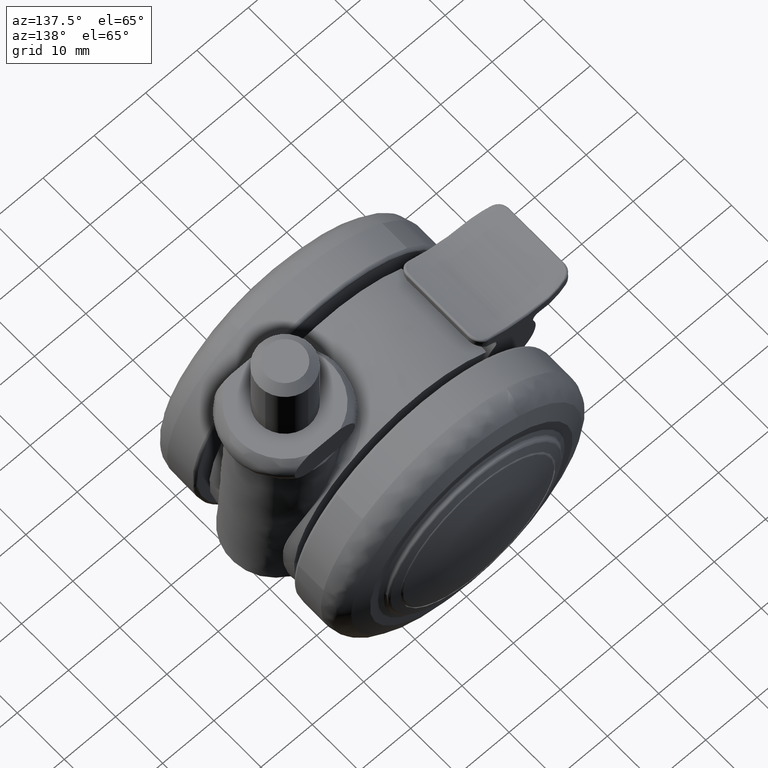
[diagram: clean part render]
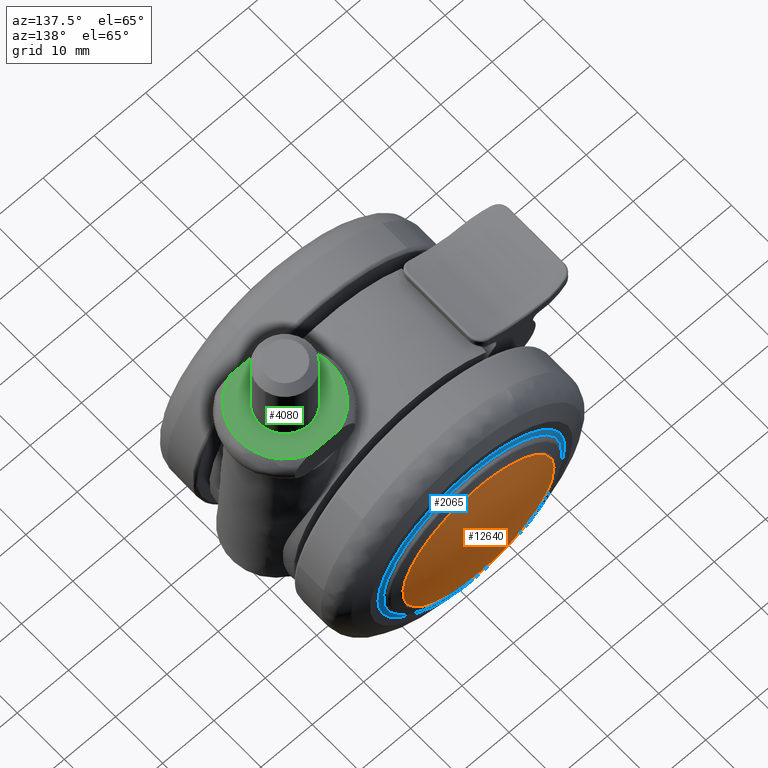
[diagram: same view with three faces highlighted in distinct colors, each labeled with its STEP entity id]
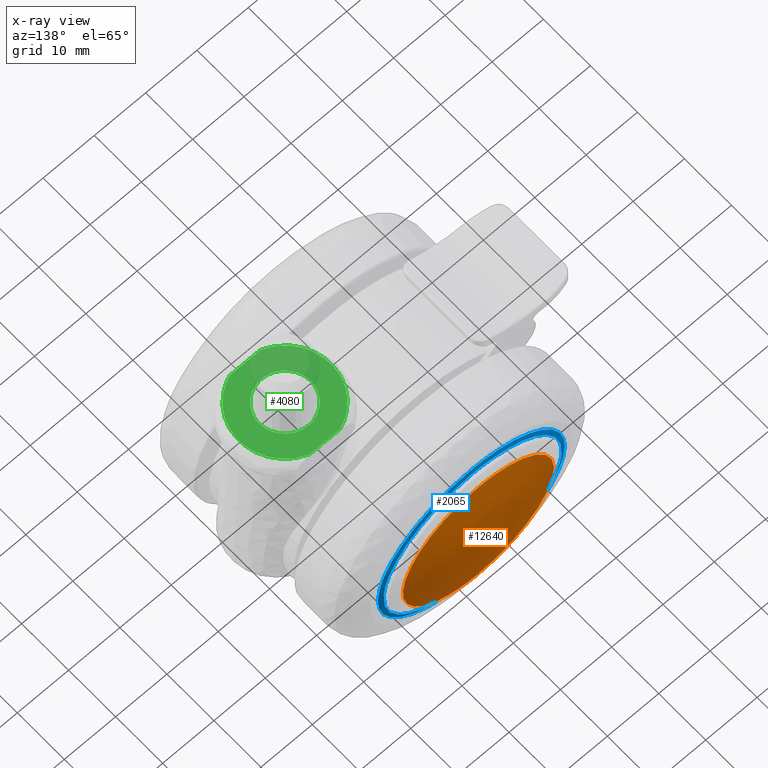
[diagram: x-ray of the same camera — body ghosted, the three highlighted faces saturated]
A machine part, auxiliary view with three faces highlighted in distinct colors.
The next image is the same camera in x-ray (body ghosted, the three faces saturated) — at least one of them is partly hidden behind the body in this view.
Their STEP definitions:

[orange] entity #12640 — the highlighted face is a freeform B-spline surface patch.
#9549=CARTESIAN_POINT('',(5.926938161823641,22.599255053341800,-13.481635294383331));
#9550=VERTEX_POINT('',#9549);
#9564=CARTESIAN_POINT('',(0.0,22.599255056600999,14.726951002130320));
#9565=VERTEX_POINT('',#9564);
#9566=CARTESIAN_POINT('',(0.0,22.599255056600999,14.726951002130320));
#9567=CARTESIAN_POINT('',(14.726951002130319,22.599255056600999,14.726951002130319));
#9568=CARTESIAN_POINT('',(14.726951002130320,22.599255056600999,-2.621149E-016));
#9569=CARTESIAN_POINT('',(14.726951002130319,22.599255056600992,-9.612881172707668));
#9570=CARTESIAN_POINT('',(5.926938161823641,22.599255053341789,-13.481635294383334));
#9578=(BOUNDED_CURVE()B_SPLINE_CURVE(2,(#9566,#9567,#9568,#9569,#9570),.UNSPECIFIED.,.F.,.U.)B_SPLINE_CURVE_WITH_KNOTS((3,2,3),(0.500000000000000,0.750000000000000,0.931662010431912),.UNSPECIFIED.)CURVE()GEOMETRIC_REPRESENTATION_ITEM()RATIONAL_B_SPLINE_CURVE((1.0,0.707106781186548,1.0,0.787169716113897,0.883644850240147))REPRESENTATION_ITEM(''));
#9579=EDGE_CURVE('',#9565,#9550,#9578,.T.);
#9581=CARTESIAN_POINT('',(-14.309172923474369,22.599255056404619,-3.482909141406380));
#9582=VERTEX_POINT('',#9581);
#9583=CARTESIAN_POINT('',(-14.309172923474376,22.599255056404626,-3.482909141406380));
#9584=CARTESIAN_POINT('',(-14.726951002130326,22.599255056601002,-1.766510998526684));
#9585=CARTESIAN_POINT('',(-14.726951002130320,22.599255056600999,-2.621149E-016));
#9586=CARTESIAN_POINT('',(-14.726951002130319,22.599255056600999,14.726951002130319));
#9587=CARTESIAN_POINT('',(0.0,22.599255056600999,14.726951002130320));
#9595=(BOUNDED_CURVE()B_SPLINE_CURVE(2,(#9583,#9584,#9585,#9586,#9587),.UNSPECIFIED.,.F.,.U.)B_SPLINE_CURVE_WITH_KNOTS((3,2,3),(0.209598322307066,0.250000000000000,0.500000000000000),.UNSPECIFIED.)CURVE()GEOMETRIC_REPRESENTATION_ITEM()RATIONAL_B_SPLINE_CURVE((0.920631806224154,0.952666490300212,1.0,0.707106781186548,1.0))REPRESENTATION_ITEM(''));
#9596=EDGE_CURVE('',#9582,#9565,#9595,.T.);
#9641=CARTESIAN_POINT('',(0.0,22.599255056600999,-14.726951002130320));
#9642=VERTEX_POINT('',#9641);
#9643=CARTESIAN_POINT('',(0.0,22.599255056600999,-14.726951002130320));
#9644=CARTESIAN_POINT('',(-11.572328774366317,22.599255056600992,-14.726951002130322));
#9645=CARTESIAN_POINT('',(-14.309172923474378,22.599255056404619,-3.482909141406380));
#9653=(BOUNDED_CURVE()B_SPLINE_CURVE(2,(#9643,#9644,#9645),.UNSPECIFIED.,.F.,.U.)B_SPLINE_CURVE_WITH_KNOTS((3,3),(0.0,0.209598322307066),.UNSPECIFIED.)CURVE()GEOMETRIC_REPRESENTATION_ITEM()RATIONAL_B_SPLINE_CURVE((1.0,0.754440290886335,0.920631806224154))REPRESENTATION_ITEM(''));
#9654=EDGE_CURVE('',#9642,#9582,#9653,.T.);
#9656=CARTESIAN_POINT('',(5.926938161823641,22.599255053341793,-13.481635294383336));
#9657=CARTESIAN_POINT('',(3.094296429752681,22.599255056600999,-14.726951002130324));
#9658=CARTESIAN_POINT('',(0.0,22.599255056600999,-14.726951002130320));
#9666=(BOUNDED_CURVE()B_SPLINE_CURVE(2,(#9656,#9657,#9658),.UNSPECIFIED.,.F.,.U.)B_SPLINE_CURVE_WITH_KNOTS((3,3),(0.931662010431912,1.0),.UNSPECIFIED.)CURVE()GEOMETRIC_REPRESENTATION_ITEM()RATIONAL_B_SPLINE_CURVE((0.883644850240147,0.919937065072651,1.0))REPRESENTATION_ITEM(''));
#9667=EDGE_CURVE('',#9550,#9642,#9666,.T.);
#12610=CARTESIAN_POINT('',(-15.829709842010661,20.005647351095902,15.829986090365244));
#12611=CARTESIAN_POINT('',(-8.071202480209092,22.208393669579195,16.142686665696019));
#12612=CARTESIAN_POINT('',(8.068882567178905,22.208393669579195,16.142686665696019));
#12613=CARTESIAN_POINT('',(15.825336094572215,20.006888932141290,15.830162344482185));
#12614=CARTESIAN_POINT('',(-16.142416089958182,22.208472070397931,8.071348897715129));
#12615=CARTESIAN_POINT('',(-8.233857186931674,24.499999999999989,8.234000878099884));
#12616=CARTESIAN_POINT('',(8.231490521911994,24.499999999999989,8.234000878099884));
#12617=CARTESIAN_POINT('',(16.137959491341814,22.209763189586987,8.071440540976507));
#12618=CARTESIAN_POINT('',(-16.142416089958182,22.208472070397931,-8.071348783451848));
#12619=CARTESIAN_POINT('',(-8.233857186931674,24.499999999999989,-8.234000761533995));
#12620=CARTESIAN_POINT('',(8.231490521911994,24.499999999999989,-8.234000761533995));
#12621=CARTESIAN_POINT('',(16.137959491341814,22.209763189586987,-8.071440426711929));
#12622=CARTESIAN_POINT('',(-15.829709850692895,20.005647412256948,-15.829985874948019));
#12623=CARTESIAN_POINT('',(-8.071202484723408,22.208393733180419,-16.142686446198404));
#12624=CARTESIAN_POINT('',(8.068882571691924,22.208393733180419,-16.142686446198404));
#12625=CARTESIAN_POINT('',(15.825336103252146,20.006888993303701,-15.830162129062655));
#12633=(BOUNDED_SURFACE()B_SPLINE_SURFACE(2,2,((#12610,#12614,#12618,#12622),(#12611,#12615,#12619,#12623),(#12612,#12616,#12620,#12624),(#12613,#12617,#12621,#12625)),.UNSPECIFIED.,.F.,.F.,.U.)B_SPLINE_SURFACE_WITH_KNOTS((3,1,3),(3,1,3),(13.223013078975679,29.153157823789790,45.078723752689363),(13.222735077905661,29.153157823789780,45.083580344152452),.UNSPECIFIED.)GEOMETRIC_REPRESENTATION_ITEM()RATIONAL_B_SPLINE_SURFACE(((1.040304246775229,1.020151771710773,1.020151771710773,1.040304246204646),(1.020152475064455,1.0,1.0,1.020152474493872),(1.020152475064455,1.0,1.0,1.020152474493872),(1.040292663956154,1.020140188891698,1.020140188891698,1.040292663385571)))REPRESENTATION_ITEM('')SURFACE());
#12634=ORIENTED_EDGE('',*,*,#9654,.T.);
#12635=ORIENTED_EDGE('',*,*,#9596,.T.);
#12636=ORIENTED_EDGE('',*,*,#9579,.T.);
#12637=ORIENTED_EDGE('',*,*,#9667,.T.);
#12638=EDGE_LOOP('',(#12634,#12635,#12636,#12637));
#12639=FACE_OUTER_BOUND('',#12638,.T.);
#12640=ADVANCED_FACE('',(#12639),#12633,.T.);

[blue] entity #2065 — the highlighted face is a freeform B-spline surface patch.
#1334=CARTESIAN_POINT('',(-17.304861389110140,-21.344103306145790,1.307233910658407));
#1335=VERTEX_POINT('',#1334);
#1349=CARTESIAN_POINT('',(0.0,-21.344103495310350,-17.354166368667300));
#1350=VERTEX_POINT('',#1349);
#1351=CARTESIAN_POINT('',(-17.304861389110133,-21.344103306145797,1.307233910658407));
#1352=CARTESIAN_POINT('',(-17.354166368667297,-21.344103495310353,0.654546774100839));
#1353=CARTESIAN_POINT('',(-17.354166368667300,-21.344103495310350,1.789254E-015));
#1354=CARTESIAN_POINT('',(-17.354166368667297,-21.344103495310346,-17.354166368667297));
#1355=CARTESIAN_POINT('',(0.0,-21.344103495310350,-17.354166368667300));
#1363=(BOUNDED_CURVE()B_SPLINE_CURVE(2,(#1351,#1352,#1353,#1354,#1355),.UNSPECIFIED.,.F.,.U.)B_SPLINE_CURVE_WITH_KNOTS((3,2,3),(0.736870159258585,0.750000000000000,1.0),.UNSPECIFIED.)CURVE()GEOMETRIC_REPRESENTATION_ITEM()RATIONAL_B_SPLINE_CURVE((0.970850634519328,0.984617434730956,1.0,0.707106781186548,1.0))REPRESENTATION_ITEM(''));
#1364=EDGE_CURVE('',#1335,#1350,#1363,.T.);
#1366=CARTESIAN_POINT('',(17.304861389110140,-21.344103306145790,-1.307233910658398));
#1367=VERTEX_POINT('',#1366);
#1368=CARTESIAN_POINT('',(0.0,-21.344103495310350,-17.354166368667300));
#1369=CARTESIAN_POINT('',(16.092653286220099,-21.344103495310357,-17.354166368667300));
#1370=CARTESIAN_POINT('',(17.304861389110133,-21.344103306145787,-1.307233910658397));
#1378=(BOUNDED_CURVE()B_SPLINE_CURVE(2,(#1368,#1369,#1370),.UNSPECIFIED.,.F.,.U.)B_SPLINE_CURVE_WITH_KNOTS((3,3),(0.0,0.236870159258586),.UNSPECIFIED.)CURVE()GEOMETRIC_REPRESENTATION_ITEM()RATIONAL_B_SPLINE_CURVE((1.0,0.722489346455591,0.970850634519328))REPRESENTATION_ITEM(''));
#1379=EDGE_CURVE('',#1350,#1367,#1378,.T.);
#1426=CARTESIAN_POINT('',(0.0,-21.344103495310350,17.354166368667300));
#1427=VERTEX_POINT('',#1426);
#1428=CARTESIAN_POINT('',(17.304861389110133,-21.344103306145794,-1.307233910658397));
#1429=CARTESIAN_POINT('',(17.354166368667304,-21.344103495310353,-0.654546774100833));
#1430=CARTESIAN_POINT('',(17.354166368667300,-21.344103495310350,1.789254E-015));
#1431=CARTESIAN_POINT('',(17.354166368667297,-21.344103495310346,17.354166368667297));
#1432=CARTESIAN_POINT('',(0.0,-21.344103495310350,17.354166368667300));
#1440=(BOUNDED_CURVE()B_SPLINE_CURVE(2,(#1428,#1429,#1430,#1431,#1432),.UNSPECIFIED.,.F.,.U.)B_SPLINE_CURVE_WITH_KNOTS((3,2,3),(0.236870159258586,0.250000000000000,0.500000000000000),.UNSPECIFIED.)CURVE()GEOMETRIC_REPRESENTATION_ITEM()RATIONAL_B_SPLINE_CURVE((0.970850634519328,0.984617434730956,1.0,0.707106781186548,1.0))REPRESENTATION_ITEM(''));
#1441=EDGE_CURVE('',#1367,#1427,#1440,.T.);
#1443=CARTESIAN_POINT('',(0.0,-21.344103495310350,17.354166368667300));
#1444=CARTESIAN_POINT('',(-16.092653286220195,-21.344103495310350,17.354166368667304));
#1445=CARTESIAN_POINT('',(-17.304861389110140,-21.344103306145790,1.307233910658407));
#1453=(BOUNDED_CURVE()B_SPLINE_CURVE(2,(#1443,#1444,#1445),.UNSPECIFIED.,.F.,.U.)B_SPLINE_CURVE_WITH_KNOTS((3,3),(0.500000000000000,0.736870159258586),.UNSPECIFIED.)CURVE()GEOMETRIC_REPRESENTATION_ITEM()RATIONAL_B_SPLINE_CURVE((1.0,0.722489346455590,0.970850634519330))REPRESENTATION_ITEM(''));
#1454=EDGE_CURVE('',#1427,#1335,#1453,.T.);
#1999=CARTESIAN_POINT('',(-19.351392213445248,-17.263890860080874,-19.351392213445248));
#2000=CARTESIAN_POINT('',(-9.954560622473874,-20.501447278870966,-19.909121244947748));
#2001=CARTESIAN_POINT('',(9.954559836009322,-20.501447278870966,-19.909121244947748));
#2002=CARTESIAN_POINT('',(19.351390770238254,-17.263891357319100,-19.351392299103740));
#2003=CARTESIAN_POINT('',(-19.909121244947748,-20.501447278870966,-9.954560622473874));
#2004=CARTESIAN_POINT('',(-10.249976550771420,-23.931162000000029,-10.249976550771420));
#2005=CARTESIAN_POINT('',(10.249975740967400,-23.931162000000029,-10.249976550771420));
#2006=CARTESIAN_POINT('',(19.909119762685819,-20.501447805184160,-9.954560667807471));
#2007=CARTESIAN_POINT('',(-19.909121244947748,-20.501447278870966,9.954559836009322));
#2008=CARTESIAN_POINT('',(-10.249976550771420,-23.931162000000029,10.249975740967400));
#2009=CARTESIAN_POINT('',(10.249975740967400,-23.931162000000029,10.249975740967400));
#2010=CARTESIAN_POINT('',(19.909119762685819,-20.501447805184160,9.954559881342915));
#2011=CARTESIAN_POINT('',(-19.351392299103740,-17.263891357319100,19.351390770238265));
#2012=CARTESIAN_POINT('',(-9.954560667807471,-20.501447805184160,19.909119762685830));
#2013=CARTESIAN_POINT('',(9.954559881342915,-20.501447805184160,19.909119762685830));
#2014=CARTESIAN_POINT('',(19.351390855896760,-17.263891854557347,19.351390855896771));
#2022=(BOUNDED_SURFACE()B_SPLINE_SURFACE(2,2,((#1999,#2003,#2007,#2011),(#2000,#2004,#2008,#2012),(#2001,#2005,#2009,#2013),(#2002,#2006,#2010,#2014)),.UNSPECIFIED.,.F.,.F.,.U.)B_SPLINE_SURFACE_WITH_KNOTS((3,1,3),(3,1,3),(11.806379472589491,31.558164899969832,51.309948766851427),(11.806379472589491,31.558164899969821,51.309948766851427),.UNSPECIFIED.)GEOMETRIC_REPRESENTATION_ITEM()RATIONAL_B_SPLINE_SURFACE(((1.059352881458295,1.029676440729147,1.029676440729147,1.059352876769094),(1.029676440729147,1.0,1.0,1.029676436039946),(1.029676440729147,1.0,1.0,1.029676436039946),(1.059352876769094,1.029676436039946,1.029676436039946,1.059352872079892)))REPRESENTATION_ITEM('')SURFACE());
#2023=CARTESIAN_POINT('',(0.0,-21.081931999999899,-18.191763477110101));
#2024=VERTEX_POINT('',#2023);
#2025=CARTESIAN_POINT('',(0.0,-21.081931999999899,18.191763477110101));
#2026=VERTEX_POINT('',#2025);
#2027=CARTESIAN_POINT('',(0.0,-21.081931999999899,-18.191763477110101));
#2028=CARTESIAN_POINT('',(18.191763477110104,-21.081931999999895,-18.191763477110104));
#2029=CARTESIAN_POINT('',(18.191763477110101,-21.081931999999899,1.789254E-015));
#2030=CARTESIAN_POINT('',(18.191763477110104,-21.081931999999895,18.191763477110104));
#2031=CARTESIAN_POINT('',(0.0,-21.081931999999899,18.191763477110101));
#2039=(BOUNDED_CURVE()B_SPLINE_CURVE(2,(#2027,#2028,#2029,#2030,#2031),.UNSPECIFIED.,.F.,.U.)B_SPLINE_CURVE_WITH_KNOTS((3,2,3),(0.0,0.250000000000000,0.500000000000000),.UNSPECIFIED.)CURVE()GEOMETRIC_REPRESENTATION_ITEM()RATIONAL_B_SPLINE_CURVE((1.0,0.707106781186547,1.0,0.707106781186547,1.0))REPRESENTATION_ITEM(''));
#2040=EDGE_CURVE('',#2024,#2026,#2039,.T.);
#2041=ORIENTED_EDGE('',*,*,#2040,.T.);
#2042=CARTESIAN_POINT('',(0.0,-21.081931999999899,18.191763477110101));
#2043=CARTESIAN_POINT('',(-18.191763477110104,-21.081931999999895,18.191763477110104));
#2044=CARTESIAN_POINT('',(-18.191763477110101,-21.081931999999899,1.789254E-015));
#2045=CARTESIAN_POINT('',(-18.191763477110104,-21.081931999999895,-18.191763477110104));
#2046=CARTESIAN_POINT('',(0.0,-21.081931999999899,-18.191763477110101));
#2054=(BOUNDED_CURVE()B_SPLINE_CURVE(2,(#2042,#2043,#2044,#2045,#2046),.UNSPECIFIED.,.F.,.U.)B_SPLINE_CURVE_WITH_KNOTS((3,2,3),(0.500000000000000,0.750000000000000,1.0),.UNSPECIFIED.)CURVE()GEOMETRIC_REPRESENTATION_ITEM()RATIONAL_B_SPLINE_CURVE((1.0,0.707106781186547,1.0,0.707106781186547,1.0))REPRESENTATION_ITEM(''));
#2055=EDGE_CURVE('',#2026,#2024,#2054,.T.);
#2056=ORIENTED_EDGE('',*,*,#2055,.T.);
#2057=EDGE_LOOP('',(#2041,#2056));
#2058=FACE_OUTER_BOUND('',#2057,.T.);
#2059=ORIENTED_EDGE('',*,*,#1379,.F.);
#2060=ORIENTED_EDGE('',*,*,#1364,.F.);
#2061=ORIENTED_EDGE('',*,*,#1454,.F.);
#2062=ORIENTED_EDGE('',*,*,#1441,.F.);
#2063=EDGE_LOOP('',(#2059,#2060,#2061,#2062));
#2064=FACE_BOUND('',#2063,.T.);
#2065=ADVANCED_FACE('',(#2058,#2064),#2022,.T.);

[green] entity #4080 — the highlighted face is a freeform B-spline surface patch.
#2331=CARTESIAN_POINT('',(17.043632677626320,4.999809615319569,32.500000002522903));
#2332=VERTEX_POINT('',#2331);
#2338=CARTESIAN_POINT('',(12.000000000000110,-3.459513E-015,32.500000002522903));
#2339=VERTEX_POINT('',#2338);
#2340=CARTESIAN_POINT('',(17.043632677626320,4.999809615319569,32.500000002522903));
#2341=CARTESIAN_POINT('',(17.021816754237971,4.999999999999887,32.500000002522896));
#2342=CARTESIAN_POINT('',(17.0,4.999999999999886,32.500000002522903));
#2343=CARTESIAN_POINT('',(12.000000000000114,4.999999999999886,32.500000002522910));
#2344=CARTESIAN_POINT('',(12.000000000000110,-3.459513E-015,32.500000002522903));
#2352=(BOUNDED_CURVE()B_SPLINE_CURVE(2,(#2340,#2341,#2342,#2343,#2344),.UNSPECIFIED.,.F.,.U.)B_SPLINE_CURVE_WITH_KNOTS((3,2,3),(0.248460105655539,0.250000000000000,0.500000000000000),.UNSPECIFIED.)CURVE()GEOMETRIC_REPRESENTATION_ITEM()RATIONAL_B_SPLINE_CURVE((0.996414028078481,0.998195901555273,1.0,0.707106781186547,1.0))REPRESENTATION_ITEM(''));
#2353=EDGE_CURVE('',#2332,#2339,#2352,.T.);
#2355=CARTESIAN_POINT('',(21.999999999999890,-3.459513E-015,32.500000002522903));
#2356=VERTEX_POINT('',#2355);
#2357=CARTESIAN_POINT('',(12.000000000000110,-3.459513E-015,32.500000002522903));
#2358=CARTESIAN_POINT('',(12.000000000000114,-4.999999999999893,32.500000002522910));
#2359=CARTESIAN_POINT('',(17.0,-4.999999999999893,32.500000002522903));
#2360=CARTESIAN_POINT('',(21.999999999999897,-4.999999999999893,32.500000002522910));
#2361=CARTESIAN_POINT('',(21.999999999999890,-3.459513E-015,32.500000002522903));
#2369=(BOUNDED_CURVE()B_SPLINE_CURVE(2,(#2357,#2358,#2359,#2360,#2361),.UNSPECIFIED.,.F.,.U.)B_SPLINE_CURVE_WITH_KNOTS((3,2,3),(0.500000000000000,0.750000000000000,1.0),.UNSPECIFIED.)CURVE()GEOMETRIC_REPRESENTATION_ITEM()RATIONAL_B_SPLINE_CURVE((1.0,0.707106781186547,1.0,0.707106781186547,1.0))REPRESENTATION_ITEM(''));
#2370=EDGE_CURVE('',#2339,#2356,#2369,.T.);
#2372=CARTESIAN_POINT('',(21.871090765885970,1.128040225567900,32.500000002522903));
#2373=VERTEX_POINT('',#2372);
#2374=CARTESIAN_POINT('',(21.999999999999890,-3.459513E-015,32.500000002522903));
#2375=CARTESIAN_POINT('',(21.999999999999890,0.571385803429555,32.500000002522896));
#2376=CARTESIAN_POINT('',(21.871090765885977,1.128040225567900,32.500000002522910));
#2384=(BOUNDED_CURVE()B_SPLINE_CURVE(2,(#2374,#2375,#2376),.UNSPECIFIED.,.F.,.U.)B_SPLINE_CURVE_WITH_KNOTS((3,3),(0.0,0.038577028217381),.UNSPECIFIED.)CURVE()GEOMETRIC_REPRESENTATION_ITEM()RATIONAL_B_SPLINE_CURVE((1.0,0.954804200132615,0.923556557439560))REPRESENTATION_ITEM(''));
#2385=EDGE_CURVE('',#2356,#2373,#2384,.T.);
#2423=CARTESIAN_POINT('',(21.871090765885970,1.128040225567899,32.500000002522910));
#2424=CARTESIAN_POINT('',(20.982432092420172,4.965436233360483,32.500000002522896));
#2425=CARTESIAN_POINT('',(17.043632677626324,4.999809615319569,32.500000002522903));
#2433=(BOUNDED_CURVE()B_SPLINE_CURVE(2,(#2423,#2424,#2425),.UNSPECIFIED.,.F.,.U.)B_SPLINE_CURVE_WITH_KNOTS((3,3),(0.038577028217381,0.248460105655539),.UNSPECIFIED.)CURVE()GEOMETRIC_REPRESENTATION_ITEM()RATIONAL_B_SPLINE_CURVE((0.923556557439560,0.753549905445786,0.996414028078481))REPRESENTATION_ITEM(''));
#2434=EDGE_CURVE('',#2373,#2332,#2433,.T.);
#3686=CARTESIAN_POINT('',(14.041962204574659,8.500000000000000,32.500000000000000));
#3687=VERTEX_POINT('',#3686);
#3688=CARTESIAN_POINT('',(19.958037793544850,8.499999994596450,32.500000005045798));
#3689=VERTEX_POINT('',#3688);
#3690=CARTESIAN_POINT('',(14.041962204574659,8.500000000000000,32.500000000000000));
#3691=CARTESIAN_POINT('',(19.958037793544850,8.499999994596450,32.500000005045798));
#3692=QUASI_UNIFORM_CURVE('',1,(#3690,#3691),.UNSPECIFIED.,.F.,.U.);
#3693=EDGE_CURVE('',#3687,#3689,#3692,.T.);
#3835=CARTESIAN_POINT('',(14.041962204574659,-8.500000000000000,32.500000000000000));
#3836=VERTEX_POINT('',#3835);
#3909=CARTESIAN_POINT('',(19.958037795425351,-8.500000000000000,32.500000000000000));
#3910=VERTEX_POINT('',#3909);
#3971=CARTESIAN_POINT('',(14.041962204574659,-8.500000000000000,32.500000000000000));
#3972=CARTESIAN_POINT('',(19.958037795425351,-8.500000000000000,32.500000000000000));
#3973=QUASI_UNIFORM_CURVE('',1,(#3971,#3972),.UNSPECIFIED.,.F.,.U.);
#3974=EDGE_CURVE('',#3836,#3910,#3973,.T.);
#4030=CARTESIAN_POINT('',(19.958037793544850,8.499999994596452,32.500000005045798));
#4031=CARTESIAN_POINT('',(25.999999305343277,6.397370522784126,32.500000005045813));
#4032=CARTESIAN_POINT('',(25.999999305343270,0.0,32.500000005045798));
#4033=CARTESIAN_POINT('',(25.999999305343277,-6.397370522784093,32.500000005045813));
#4034=CARTESIAN_POINT('',(19.958037795425351,-8.500000000000000,32.500000000000000));
#4042=(BOUNDED_CURVE()B_SPLINE_CURVE(2,(#4030,#4031,#4032,#4033,#4034),.UNSPECIFIED.,.F.,.U.)B_SPLINE_CURVE_WITH_KNOTS((3,2,3),(0.0,0.500000000000000,1.0),.UNSPECIFIED.)CURVE()GEOMETRIC_REPRESENTATION_ITEM()RATIONAL_B_SPLINE_CURVE((1.0,0.815067755256454,1.0,0.815067755256454,1.0))REPRESENTATION_ITEM(''));
#4043=EDGE_CURVE('',#3689,#3910,#4042,.T.);
#4049=CARTESIAN_POINT('',(7.100900967911564,-9.349149967050700,32.500000002522903));
#4050=CARTESIAN_POINT('',(26.899099675818551,-9.349149967050700,32.500000002522903));
#4051=CARTESIAN_POINT('',(7.100900967911564,9.349150423026234,32.500000002522903));
#4052=CARTESIAN_POINT('',(26.899099675818551,9.349150423026234,32.500000002522903));
#4053=B_SPLINE_SURFACE_WITH_KNOTS('',1,1,((#4049,#4051),(#4050,#4052)),.UNSPECIFIED.,.F.,.F.,.U.,(2,2),(2,2),(0.0,19.798198707906980),(0.0,18.698300390076930),.UNSPECIFIED.);
#4054=ORIENTED_EDGE('',*,*,#3693,.F.);
#4055=CARTESIAN_POINT('',(14.041962204574659,-8.500000000000000,32.500000000000000));
#4056=CARTESIAN_POINT('',(8.000000694656734,-6.397370522784104,32.500000005045798));
#4057=CARTESIAN_POINT('',(8.000000694656732,0.0,32.500000005045798));
#4058=CARTESIAN_POINT('',(8.000000694656734,6.397370522784100,32.500000005045798));
#4059=CARTESIAN_POINT('',(14.041962204574659,8.500000000000000,32.500000000000000));
#4067=(BOUNDED_CURVE()B_SPLINE_CURVE(2,(#4055,#4056,#4057,#4058,#4059),.UNSPECIFIED.,.F.,.U.)B_SPLINE_CURVE_WITH_KNOTS((3,2,3),(0.0,0.500000000000000,1.0),.UNSPECIFIED.)CURVE()GEOMETRIC_REPRESENTATION_ITEM()RATIONAL_B_SPLINE_CURVE((1.0,0.815067755256454,1.0,0.815067755256454,1.0))REPRESENTATION_ITEM(''));
#4068=EDGE_CURVE('',#3836,#3687,#4067,.T.);
#4069=ORIENTED_EDGE('',*,*,#4068,.F.);
#4070=ORIENTED_EDGE('',*,*,#3974,.T.);
#4071=ORIENTED_EDGE('',*,*,#4043,.F.);
#4072=EDGE_LOOP('',(#4054,#4069,#4070,#4071));
#4073=FACE_OUTER_BOUND('',#4072,.T.);
#4074=ORIENTED_EDGE('',*,*,#2370,.F.);
#4075=ORIENTED_EDGE('',*,*,#2353,.F.);
#4076=ORIENTED_EDGE('',*,*,#2434,.F.);
#4077=ORIENTED_EDGE('',*,*,#2385,.F.);
#4078=EDGE_LOOP('',(#4074,#4075,#4076,#4077));
#4079=FACE_BOUND('',#4078,.T.);
#4080=ADVANCED_FACE('',(#4073,#4079),#4053,.T.);